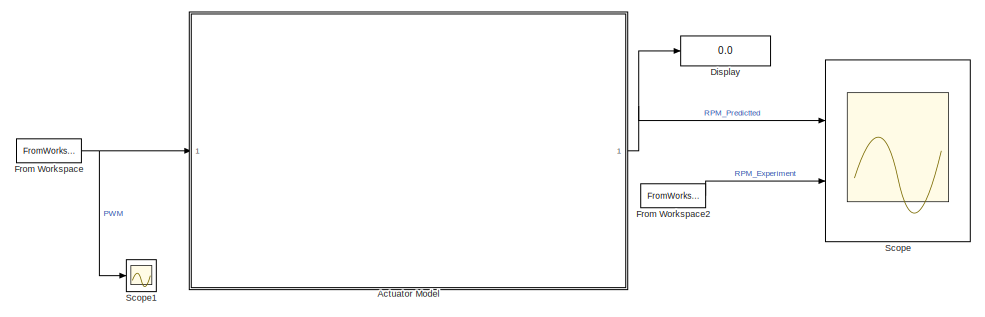
[diagram: root canvas - part 1/2, right side, full height]
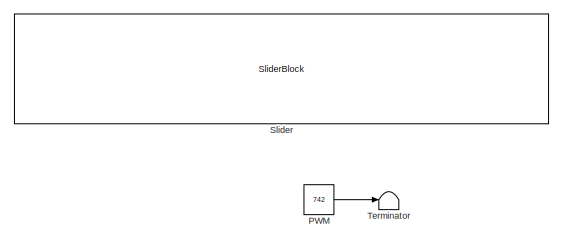
[diagram: root canvas - part 2/2, middle left region]
MODEL slx_42a7d6d221c3
KIND model
CONFIG AbsTol = auto
CONFIG EnableMultiTasking = off
CONFIG FixedStep = auto
CONFIG MaxStep = auto
CONFIG MinStep = auto
CONFIG RelTol = 1e-3
CONFIG SampleTimeConstraint = Unconstrained
CONFIG SolverName = VariableStepAuto
CONFIG StartTime = 0.0
CONFIG StopTime = 968
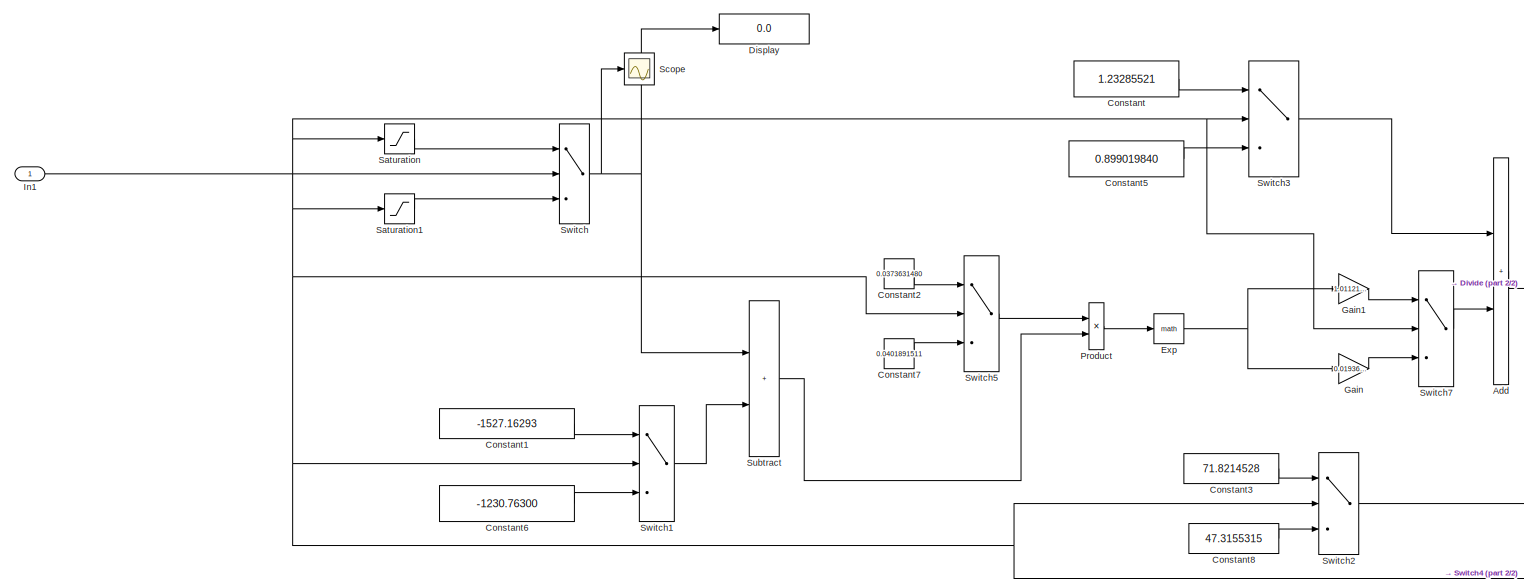
[diagram: Actuator Model - part 1/2, center side, full height]
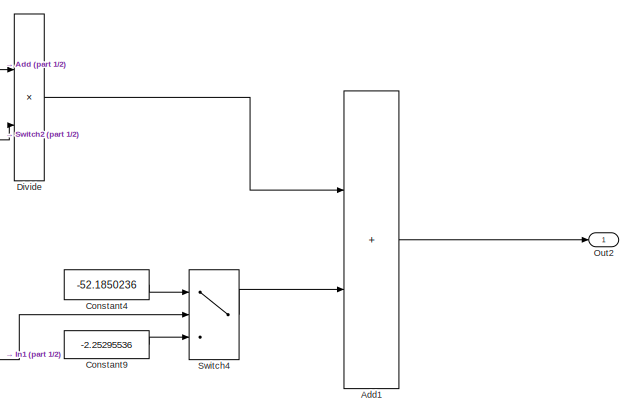
[diagram: Actuator Model - part 2/2, bottom right region]
BLOCK [SubSystem] Actuator Model
  Ports = [1, 1]
  RequestExecContextInheritance = off
BLOCK [Sum] Actuator Model/Add
  IconShape = rectangular
  Ports = [2, 1]
BLOCK [Sum] Actuator Model/Add1
  IconShape = rectangular
  Ports = [2, 1]
BLOCK [Constant] Actuator Model/Constant
  Value = 1.23285521
BLOCK [Constant] Actuator Model/Constant1
  Value = -1527.16293
BLOCK [Constant] Actuator Model/Constant2
  Value = 0.0373631480
BLOCK [Constant] Actuator Model/Constant3
  Value = 71.8214528
BLOCK [Constant] Actuator Model/Constant4
  Value = -52.1850236
BLOCK [Constant] Actuator Model/Constant5
  Value = 0.899019840
BLOCK [Constant] Actuator Model/Constant6
  Value = -1230.76300
BLOCK [Constant] Actuator Model/Constant7
  Value = 0.0401891511
BLOCK [Constant] Actuator Model/Constant8
  Value = 47.3155315
BLOCK [Constant] Actuator Model/Constant9
  Value = -2.25295536
BLOCK [Display] Actuator Model/Display
  Decimation = 1
  Ports = [1]
BLOCK [Product] Actuator Model/Divide
  Inputs = /*
  Ports = [2, 1]
BLOCK [Math] Actuator Model/Exp
  Ports = [1, 1]
BLOCK [Gain] Actuator Model/Gain
  Gain = 0.0193653666
BLOCK [Gain] Actuator Model/Gain1
  Gain = 1.01121273
BLOCK [Inport] Actuator Model/In1
BLOCK [Outport] Actuator Model/Out2
BLOCK [Product] Actuator Model/Product
  Ports = [2, 1]
BLOCK [Saturate] Actuator Model/Saturation
  LowerLimit = 1474.89050
  UpperLimit = 2000
BLOCK [Saturate] Actuator Model/Saturation1
  LowerLimit = 1000
  UpperLimit = 1403.57366
BLOCK [Scope] Actuator Model/Scope
  Floating = off
  NumInputPorts = 1
  Ports = [1]
  ScopeSpecificationString = Simulink.scopes.TimeScopeBlockCfg('CurrentConfiguration', extmgr.ConfigurationSet(extmgr.Configuration('Core','General UI',true),extmgr.Configuration('Core','Source UI',true),extmgr.Configuration('Sources','WiredSimulink',true,'DataLoggingVariableName','ScopeData1'),extmgr.Configuration('Visuals','Time Domain',true,'SerializedDisplays',{struct('MinYLimReal','937.54881','MaxYLimReal','1562.06069','...<+1703ch>
BLOCK [Sum] Actuator Model/Subtract
  IconShape = rectangular
  Ports = [2, 1]
BLOCK [Switch] Actuator Model/Switch
  Criteria = u2 > Threshold
  InputSameDT = off
  SaturateOnIntegerOverflow = off
  Threshold = 1450
BLOCK [Switch] Actuator Model/Switch1
  Criteria = u2 > Threshold
  InputSameDT = off
  SaturateOnIntegerOverflow = off
  Threshold = 1450
BLOCK [Switch] Actuator Model/Switch2
  Criteria = u2 > Threshold
  InputSameDT = off
  SaturateOnIntegerOverflow = off
  Threshold = 1450
BLOCK [Switch] Actuator Model/Switch3
  Criteria = u2 > Threshold
  InputSameDT = off
  SaturateOnIntegerOverflow = off
  Threshold = 1450
BLOCK [Switch] Actuator Model/Switch4
  Criteria = u2 > Threshold
  InputSameDT = off
  SaturateOnIntegerOverflow = off
  Threshold = 1450
BLOCK [Switch] Actuator Model/Switch5
  Criteria = u2 > Threshold
  InputSameDT = off
  SaturateOnIntegerOverflow = off
  Threshold = 1450
BLOCK [Switch] Actuator Model/Switch7
  Criteria = u2 > Threshold
  InputSameDT = off
  SaturateOnIntegerOverflow = off
  Threshold = 1450
BLOCK [Display] Display
  Decimation = 1
  Ports = [1]
BLOCK [FromWorkspace] From Workspace
  VariableName = PWM
BLOCK [FromWorkspace] From Workspace2
  VariableName = RPM
BLOCK [Constant] PWM
  Value = 742
BLOCK [Scope] Scope
  Floating = off
  NumInputPorts = 2
  Ports = [2]
  ScopeSpecificationString = Simulink.scopes.TimeScopeBlockCfg('CurrentConfiguration', extmgr.ConfigurationSet(extmgr.Configuration('Core','General UI',true),extmgr.Configuration('Core','Source UI',true),extmgr.Configuration('Sources','WiredSimulink',true),extmgr.Configuration('Visuals','Time Domain',true,'SerializedDisplays',{struct('MinYLimReal','-14.64526','MaxYLimReal','60.51614','YLabelReal','','MinYLimMag','0.00000','Ma...<+1536ch>
BLOCK [Scope] Scope1
  Floating = off
  NumInputPorts = 1
  Ports = [1]
  ScopeSpecificationString = Simulink.scopes.TimeScopeBlockCfg('CurrentConfiguration', extmgr.ConfigurationSet(extmgr.Configuration('Core','General UI',true),extmgr.Configuration('Core','Source UI',true),extmgr.Configuration('Sources','WiredSimulink',true,'DataLoggingVariableName','ScopeData1'),extmgr.Configuration('Visuals','Time Domain',true,'SerializedDisplays',{struct('MinYLimReal','935.98631','MaxYLimReal','1562.2343','Y...<+1743ch>
BLOCK [SliderBlock] Slider
  ScaleMax = 2300
  ScaleMin = 742
BLOCK [Terminator] Terminator
LINE Actuator Model/Add1:1 -> Actuator Model/Out2:1
LINE Actuator Model/Add:1 -> Actuator Model/Divide:1
LINE Actuator Model/Constant1:1 -> Actuator Model/Switch1:1
LINE Actuator Model/Constant2:1 -> Actuator Model/Switch5:1
LINE Actuator Model/Constant3:1 -> Actuator Model/Switch2:1
LINE Actuator Model/Constant4:1 -> Actuator Model/Switch4:1
LINE Actuator Model/Constant5:1 -> Actuator Model/Switch3:3
LINE Actuator Model/Constant6:1 -> Actuator Model/Switch1:3
LINE Actuator Model/Constant7:1 -> Actuator Model/Switch5:3
LINE Actuator Model/Constant8:1 -> Actuator Model/Switch2:3
LINE Actuator Model/Constant9:1 -> Actuator Model/Switch4:3
LINE Actuator Model/Constant:1 -> Actuator Model/Switch3:1
LINE Actuator Model/Divide:1 -> Actuator Model/Add1:1
NET Actuator Model/Exp:1 -> Actuator Model/Gain1:1, Actuator Model/Gain:1
LINE Actuator Model/Gain1:1 -> Actuator Model/Switch7:1
LINE Actuator Model/Gain:1 -> Actuator Model/Switch7:3
NET Actuator Model/In1:1 -> Actuator Model/Saturation1:1, Actuator Model/Saturation:1, Actuator Model/Switch1:2, Actuator Model/Switch2:2, Actuator Model/Switch3:2, Actuator Model/Switch4:2, Actuator Model/Switch5:2, Actuator Model/Switch7:2, Actuator Model/Switch:2
LINE Actuator Model/Product:1 -> Actuator Model/Exp:1
LINE Actuator Model/Saturation1:1 -> Actuator Model/Switch:3
LINE Actuator Model/Saturation:1 -> Actuator Model/Switch:1
LINE Actuator Model/Subtract:1 -> Actuator Model/Product:2
LINE Actuator Model/Switch1:1 -> Actuator Model/Subtract:2
LINE Actuator Model/Switch2:1 -> Actuator Model/Divide:2
LINE Actuator Model/Switch3:1 -> Actuator Model/Add:1
LINE Actuator Model/Switch4:1 -> Actuator Model/Add1:2
LINE Actuator Model/Switch5:1 -> Actuator Model/Product:1
LINE Actuator Model/Switch7:1 -> Actuator Model/Add:2
NET Actuator Model/Switch:1 -> Actuator Model/Display:1, Actuator Model/Scope:1, Actuator Model/Subtract:1
NET Actuator Model:1 -> Display:1, Scope:1
LINE From Workspace2:1 -> Scope:2
NET From Workspace:1 -> Actuator Model:1, Scope1:1
LINE PWM:1 -> Terminator:1
note: NET lines group one-source signal fan-out (src -> all destinations, sorted); 1:1 wires keep LINE
